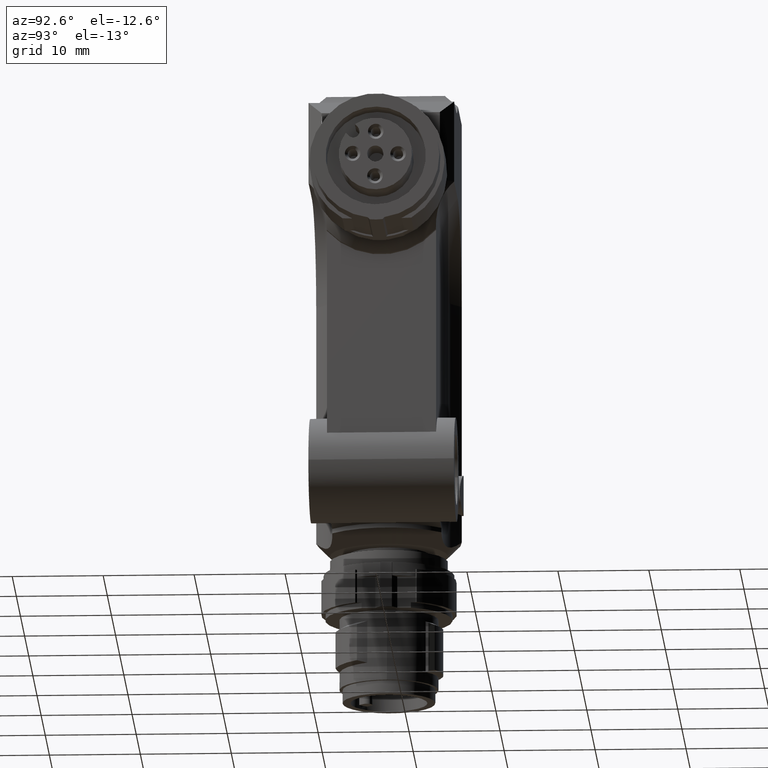
[diagram: clean part render]
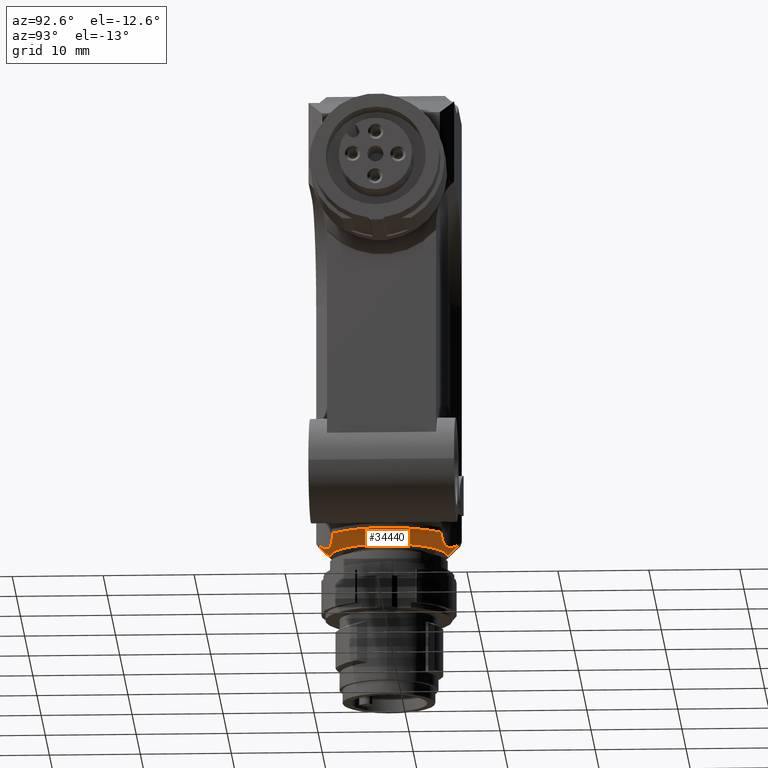
[diagram: same view with one face highlighted and labeled with its STEP entity id]
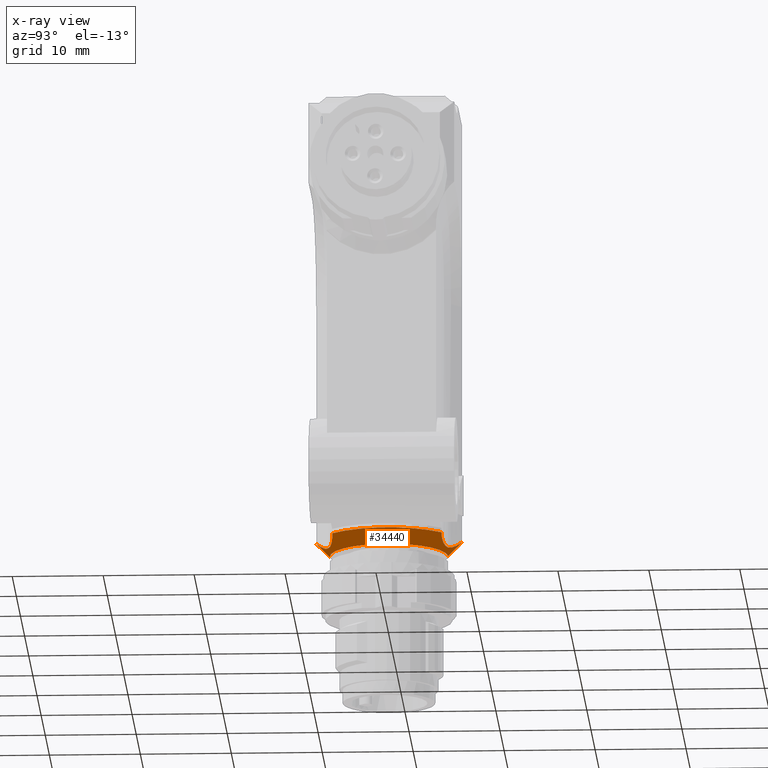
[diagram: x-ray of the same camera — body ghosted, the highlighted face saturated]
A machine part, auxiliary view. The second image highlights one B-rep face of the part: STEP entity #34440.
The next image is the same camera in x-ray: the body ghosted, the highlighted face saturated — about 0% of this face is hidden behind the body in this view.
In plain terms, the highlighted conical surface has half-angle 45 deg.
Its self-contained STEP definition (entity closure, byte-faithful):
#7100=CARTESIAN_POINT('',(8.,7.105427357601E-15,1.5));
#7110=VERTEX_POINT('',#7100);
#7190=CARTESIAN_POINT('',(-8.,8.08514479691888E-15,1.5));
#7200=VERTEX_POINT('',#7190);
#11740=CARTESIAN_POINT('',(-14.,5.29150262212919,0.));
#11750=DIRECTION('',(0.,0.,-1.));
#11760=DIRECTION('',(-1.,0.,0.));
#11770=AXIS2_PLACEMENT_3D('',#11740,#11750,#11760);
#11780=CYLINDRICAL_SURFACE('',#11770,8.);
#13770=CARTESIAN_POINT('',(7.61693287089118E-16,7.105427357601E-15,1.5))
;
#13780=DIRECTION('',(2.52970265222012E-16,0.,1.));
#13790=DIRECTION('',(1.,0.,-2.52970265222012E-16));
#13800=AXIS2_PLACEMENT_3D('',#13770,#13780,#13790);
#13810=CONICAL_SURFACE('',#13800,8.,0.785398163397448);
#13820=CARTESIAN_POINT('',(-8.,5.72739021824194E-15,1.5));
#13830=CARTESIAN_POINT('',(-7.96410206669721,0.0407044303287358,
1.46410206669721));
#13840=CARTESIAN_POINT('',(-7.92839924175299,0.0820225226208609,
1.42870963334482));
#13850=CARTESIAN_POINT('',(-7.89290958233148,0.12396484960915,
1.39388300893792));
#13860=CARTESIAN_POINT('',(-7.8574199214178,0.165907178360932,
1.35905638306671));
#13870=CARTESIAN_POINT('',(-7.82214335488641,0.208473797361093,
1.32479548294923));
#13880=CARTESIAN_POINT('',(-7.78709730604285,0.251677216877538,
1.29116331976651));
#13890=CARTESIAN_POINT('',(-7.75205126328362,0.294880628893448,
1.25753116242265));
#13900=CARTESIAN_POINT('',(-7.71723564973883,0.338720921531129,
1.22452764439301));
#13910=CARTESIAN_POINT('',(-7.6826676061991,0.383212550603892,
1.19221901705102));
#13920=CARTESIAN_POINT('',(-7.64809957885258,0.427704158834798,
1.15991040484383));
#13930=CARTESIAN_POINT('',(-7.61377901458603,0.472847213315825,
1.12829657298626));
#13940=CARTESIAN_POINT('',(-7.57972321579006,0.518657976204203,
1.09744760589153));
#13950=CARTESIAN_POINT('',(-7.54566744591511,0.564468700188939,
1.06659866499452));
#13960=CARTESIAN_POINT('',(-7.5118763162811,0.61094727666974,
1.03651446984425));
#13970=CARTESIAN_POINT('',(-7.47836782959569,0.65811144136523,
1.00726954783389));
#13980=CARTESIAN_POINT('',(-7.44485731579755,0.705278459280541,
0.9780228566373));
#13990=CARTESIAN_POINT('',(-7.41164536772475,0.753107034792666,
0.949628422345238));
#14000=CARTESIAN_POINT('',(-7.3786750100924,0.801730314090409,
0.922103232983273));
#14010=CARTESIAN_POINT('',(-7.34571005091874,0.850345631971193,
0.894582550505923));
#14020=CARTESIAN_POINT('',(-7.31301622512814,0.89971412583298,
0.867956975316604));
#14030=CARTESIAN_POINT('',(-7.28064316357945,0.949815887132247,
0.842337168424302));
#14040=CARTESIAN_POINT('',(-7.24827010448691,0.999917644630298,
0.816717363475771));
#14050=CARTESIAN_POINT('',(-7.21621790608939,1.05075253923477,
0.792103485069121));
#14060=CARTESIAN_POINT('',(-7.18453482592318,1.10229810803037,
0.768603840069305));
#14070=CARTESIAN_POINT('',(-7.1211559648346,1.20540990862833,
0.721595129796793));
#14080=CARTESIAN_POINT('',(-7.05930835544935,1.31127388298865,
0.679083714058225));
#14090=CARTESIAN_POINT('',(-6.99921085342267,1.41994591646509,
0.641792420416362));
#14100=CARTESIAN_POINT('',(-6.9691461035657,1.47431086330542,
0.623136846101685));
#14110=CARTESIAN_POINT('',(-6.939495860216,1.52942294213745,
0.605774380589383));
#14120=CARTESIAN_POINT('',(-6.91033369343176,1.58520640332651,
0.589823065191795));
#14130=CARTESIAN_POINT('',(-6.88117153535106,1.64098984786682,
0.573871754554922));
#14140=CARTESIAN_POINT('',(-6.8524981693361,1.69744343025899,
0.559332205759282));
#14150=CARTESIAN_POINT('',(-6.82438256141844,1.75448207156348,
0.546304328087861));
#14160=CARTESIAN_POINT('',(-6.79626689343016,1.8115208347343,
0.533276422581632));
#14170=CARTESIAN_POINT('',(-6.76870980882053,1.86914303288345,
0.521760725845155));
#14180=CARTESIAN_POINT('',(-6.74177290891049,1.92725835421782,
0.511834761260491));
#14190=CARTESIAN_POINT('',(-6.71484247471478,1.98535972602323,
0.501911179223619));
#14200=CARTESIAN_POINT('',(-6.68849583296876,2.04403208992537,
0.493563512535875));
#14210=CARTESIAN_POINT('',(-6.66279674439707,2.10317259122432,
0.486858765255289));
#14220=CARTESIAN_POINT('',(-6.63709596315496,2.16231698781227,
0.480153576366536));
#14230=CARTESIAN_POINT('',(-6.61205960585843,2.2218890719811,
0.475094558073922));
#14240=CARTESIAN_POINT('',(-6.58770603806595,2.28186838822701,
0.471713862828867));
#14250=CARTESIAN_POINT('',(-6.56335139197452,2.34185036016732,
0.468333017897322));
#14260=CARTESIAN_POINT('',(-6.53970243942642,2.40218410801377,
0.46663443254683));
#14270=CARTESIAN_POINT('',(-6.51678425174998,2.46281351493788,
0.46662955762807));
#14280=CARTESIAN_POINT('',(-6.49386388033894,2.52344869886911,
0.46662468224481));
#14290=CARTESIAN_POINT('',(-6.4716898448202,2.58433874005042,
0.468313817250641));
#14300=CARTESIAN_POINT('',(-6.45027951276266,2.64542617489855,
0.471684548199522));
#14310=CARTESIAN_POINT('',(-6.42886724174378,2.70651914194366,
0.475055584408357));
#14320=CARTESIAN_POINT('',(-6.40823611475259,2.7677596366264,
0.48010535598836));
#14330=CARTESIAN_POINT('',(-6.38838951291377,2.8291083009696,
0.486800007680294));
#14340=CARTESIAN_POINT('',(-6.36854313288212,2.89045627967534,
0.493494584552278));
#14350=CARTESIAN_POINT('',(-6.3494889494157,2.95189119291827,
0.501833248995333));
#14360=CARTESIAN_POINT('',(-6.33125209107613,3.01327842127105,
0.511747277594473));
#14370=CARTESIAN_POINT('',(-6.31301261372562,3.07467446549659,
0.521662729955804));
#14380=CARTESIAN_POINT('',(-6.2955682899759,3.13609766858084,
0.53316567557126));
#14390=CARTESIAN_POINT('',(-6.27893374412793,3.1974310205707,
0.546174429742339));
#14400=CARTESIAN_POINT('',(-6.24564902065462,3.32015536058764,
0.572204162641207));
#14410=CARTESIAN_POINT('',(-6.21567418007353,3.44225765683492,
0.604202798516999));
#14420=CARTESIAN_POINT('',(-6.18883944198332,3.56356433130844,
0.641479145248703));
#14430=CARTESIAN_POINT('',(-6.17541827429885,3.6242348403286,
0.660122595334525));
#14440=CARTESIAN_POINT('',(-6.16277843479283,3.68472628117394,
0.680092130688335));
#14450=CARTESIAN_POINT('',(-6.15090558738149,3.74498495271804,
0.701288207047774));
#14460=CARTESIAN_POINT('',(-6.13903275017531,3.80524357246757,
0.722484265188396));
#14470=CARTESIAN_POINT('',(-6.12792697853662,3.86526900765355,
0.744906613799509));
#14480=CARTESIAN_POINT('',(-6.11757068222246,3.92500781780645,
0.768449451005999));
#14490=CARTESIAN_POINT('',(-6.10721438787207,3.98474661663162,
0.791992283748277));
#14500=CARTESIAN_POINT('',(-6.09760760529449,4.04419850275096,
0.81665538518572));
#14510=CARTESIAN_POINT('',(-6.08872949336202,4.10331115153196,
0.842328598586623));
#14520=CARTESIAN_POINT('',(-6.07985137922011,4.16242381502395,
0.868001818376653));
#14530=CARTESIAN_POINT('',(-6.07170194880319,4.22119705638548,
0.894684971160126));
#14540=CARTESIAN_POINT('',(-6.06425727291068,4.27958001172416,
0.922265243764799));
#14550=CARTESIAN_POINT('',(-6.0568125931952,4.33796299704353,
0.949845530532436));
#14560=CARTESIAN_POINT('',(-6.0500726682241,4.39595558733358,
0.978322800150361));
#14570=CARTESIAN_POINT('',(-6.04401070510655,4.45350838614571,
1.00758298981162));
#14580=CARTESIAN_POINT('',(-6.0379505482363,4.51104403629074,
1.03683446098721));
#14590=CARTESIAN_POINT('',(-6.03256101860198,4.56819725430387,
1.06689599000467));
#14600=CARTESIAN_POINT('',(-6.02780845434912,4.62504785288182,
1.09773271468333));
#14610=CARTESIAN_POINT('',(-6.0230564031192,4.68189231463345,
1.12856611064377));
#14620=CARTESIAN_POINT('',(-6.01894399012063,4.73840740074541,
1.16016086913247));
#14630=CARTESIAN_POINT('',(-6.01544719175321,4.7945957371716,
1.19244780285675));
#14640=CARTESIAN_POINT('',(-6.01195039115163,4.85078410949739,
1.22473475720965));
#14650=CARTESIAN_POINT('',(-6.00906921148045,4.90664589788557,
1.25771400540506));
#14660=CARTESIAN_POINT('',(-6.00678110214714,4.96218263942553,
1.29132053994239));
#14670=CARTESIAN_POINT('',(-6.00449299210999,5.01771939804926,
1.32492708481748));
#14680=CARTESIAN_POINT('',(-6.00279796515409,5.07293123948109,
1.35916102175182));
#14690=CARTESIAN_POINT('',(-6.00167471304066,5.12781815742127,
1.39396088264509));
#14700=CARTESIAN_POINT('',(-6.00055146086099,5.18270507859823,
1.42876074559057));
#14710=CARTESIAN_POINT('',(-6.,5.23726717448766,1.46412662332406));
#14720=CARTESIAN_POINT('',(-6.,5.29150262212919,1.5));
#14730=B_SPLINE_CURVE_WITH_KNOTS('',3,(#13820,#13830,#13840,#13850,
#13860,#13870,#13880,#13890,#13900,#13910,#13920,#13930,#13940,#13950,
#13960,#13970,#13980,#13990,#14000,#14010,#14020,#14030,#14040,#14050,
#14060,#14070,#14080,#14090,#14100,#14110,#14120,#14130,#14140,#14150,
#14160,#14170,#14180,#14190,#14200,#14210,#14220,#14230,#14240,#14250,
#14260,#14270,#14280,#14290,#14300,#14310,#14320,#14330,#14340,#14350,
#14360,#14370,#14380,#14390,#14400,#14410,#14420,#14430,#14440,#14450,
#14460,#14470,#14480,#14490,#14500,#14510,#14520,#14530,#14540,#14550,
#14560,#14570,#14580,#14590,#14600,#14610,#14620,#14630,#14640,#14650,
#14660,#14670,#14680,#14690,#14700,#14710,#14720),.UNSPECIFIED.,.F.,.F.,
(4,3,3,3,3,3,3,3,3,3,3,3,3,3,3,3,3,3,3,3,3,3,3,3,3,3,3,3,3,3,4),(0.,
0.195188606983974,0.390279432757332,0.58521482896295,0.779965254354914,
0.974530901724284,1.16901063706763,1.36370741116983,1.55846248008233,
1.94760034942322,2.1423273275449,2.33711989622456,2.53173046494902,
2.72619530425316,2.92064411735206,3.11508510544907,3.30952333629801,
3.50396649838287,3.69842833389841,3.89296298348065,4.28204020904119,
4.47681276609432,4.67184131875322,4.86700114885682,5.06210146850888,
5.25689410853825,5.45136465061439,5.64597534096816,5.840754721473,
6.03568712259809,6.23073027581124),.UNSPECIFIED.);
#14740=SURFACE_CURVE('',#14730,(#13810,#11780),.CURVE_3D.);
#14750=CARTESIAN_POINT('',(-6.,5.29150262212919,1.5));
#14760=VERTEX_POINT('',#14750);
#14770=EDGE_CURVE('',#7200,#14760,#14740,.T.);
#24260=CARTESIAN_POINT('',(7.61693287089117E-16,7.105427357601E-15,1.5))
;
#24270=DIRECTION('',(2.52970265222012E-16,3.09799225583593E-32,1.));
#24280=DIRECTION('',(1.,1.52742810956651E-63,-2.52970265222012E-16));
#24290=AXIS2_PLACEMENT_3D('',#24260,#24270,#24280);
#24300=CIRCLE('',#24290,8.);
#24310=CARTESIAN_POINT('',(6.,5.29150262212919,1.5));
#24320=VERTEX_POINT('',#24310);
#24330=EDGE_CURVE('',#24320,#14760,#24300,.T.);
#25220=CARTESIAN_POINT('',(14.,5.29150262212919,0.));
#25230=DIRECTION('',(0.,0.,-1.));
#25240=DIRECTION('',(1.,0.,0.));
#25250=AXIS2_PLACEMENT_3D('',#25220,#25230,#25240);
#25260=CYLINDRICAL_SURFACE('',#25250,8.);
#25310=CARTESIAN_POINT('',(8.,7.36775560624499E-15,1.5));
#25320=CARTESIAN_POINT('',(7.96410206669721,0.0407044303287402,
1.4641020666972));
#25330=CARTESIAN_POINT('',(7.92839924175299,0.0820225226208562,
1.42870963334482));
#25340=CARTESIAN_POINT('',(7.89290958233149,0.123964849609148,
1.39388300893791));
#25350=CARTESIAN_POINT('',(7.85741992141855,0.165907178360047,
1.35905638306744));
#25360=CARTESIAN_POINT('',(7.82214335488715,0.208473797360179,
1.32479548294994));
#25370=CARTESIAN_POINT('',(7.78709730604285,0.251677216877535,
1.2911633197665));
#25380=CARTESIAN_POINT('',(7.75205126328362,0.294880628893451,
1.25753116242264));
#25390=CARTESIAN_POINT('',(7.71723564973883,0.338720921531128,
1.224527644393));
#25400=CARTESIAN_POINT('',(7.6826676061991,0.383212550603892,
1.19221901705102));
#25410=CARTESIAN_POINT('',(7.64809957885258,0.4277041588348,
1.15991040484383));
#25420=CARTESIAN_POINT('',(7.61377901458604,0.472847213315818,
1.12829657298626));
#25430=CARTESIAN_POINT('',(7.57972321579006,0.518657976204202,
1.09744760589153));
#25440=CARTESIAN_POINT('',(7.54566744591512,0.564468700188936,
1.06659866499451));
#25450=CARTESIAN_POINT('',(7.5118763162811,0.610947276669745,
1.03651446984424));
#25460=CARTESIAN_POINT('',(7.47836782959569,0.658111441365229,
1.00726954783389));
#25470=CARTESIAN_POINT('',(7.44485731579756,0.705278459280539,
0.978022856637298));
#25480=CARTESIAN_POINT('',(7.41164536772475,0.753107034792663,
0.949628422345234));
#25490=CARTESIAN_POINT('',(7.3786750100924,0.801730314090405,
0.92210323298327));
#25500=CARTESIAN_POINT('',(7.34571005091874,0.850345631971183,
0.894582550505923));
#25510=CARTESIAN_POINT('',(7.31301622512814,0.899714125832975,
0.867956975316601));
#25520=CARTESIAN_POINT('',(7.28064316357945,0.949815887132244,
0.842337168424297));
#25530=CARTESIAN_POINT('',(7.24827010448691,0.999917644630293,
0.816717363475768));
#25540=CARTESIAN_POINT('',(7.21621790608939,1.05075253923478,
0.792103485069114));
#25550=CARTESIAN_POINT('',(7.18453482592318,1.10229810803037,
0.768603840069301));
#25560=CARTESIAN_POINT('',(7.1211559648346,1.20540990862833,
0.72159512979679));
#25570=CARTESIAN_POINT('',(7.05930835544935,1.31127388298865,
0.679083714058221));
#25580=CARTESIAN_POINT('',(6.99921085342267,1.41994591646509,
0.641792420416356));
#25590=CARTESIAN_POINT('',(6.9691461035657,1.47431086330543,
0.623136846101677));
#25600=CARTESIAN_POINT('',(6.939495860216,1.52942294213745,
0.605774380589379));
#25610=CARTESIAN_POINT('',(6.91033369343176,1.58520640332651,
0.58982306519179));
#25620=CARTESIAN_POINT('',(6.88117153535106,1.64098984786682,
0.573871754554918));
#25630=CARTESIAN_POINT('',(6.8524981693361,1.69744343025899,
0.559332205759277));
#25640=CARTESIAN_POINT('',(6.82438256141844,1.75448207156348,
0.546304328087857));
#25650=CARTESIAN_POINT('',(6.79626689343016,1.8115208347343,
0.533276422581627));
#25660=CARTESIAN_POINT('',(6.76870980882053,1.86914303288345,
0.521760725845152));
#25670=CARTESIAN_POINT('',(6.74177290891049,1.92725835421782,
0.511834761260487));
#25680=CARTESIAN_POINT('',(6.71484247471478,1.98535972602323,
0.501911179223614));
#25690=CARTESIAN_POINT('',(6.68849583296876,2.04403208992537,
0.493563512535871));
#25700=CARTESIAN_POINT('',(6.66279674439707,2.10317259122431,
0.486858765255285));
#25710=CARTESIAN_POINT('',(6.63709596315496,2.16231698781227,
0.480153576366532));
#25720=CARTESIAN_POINT('',(6.61205960585843,2.22188907198109,
0.475094558073918));
#25730=CARTESIAN_POINT('',(6.58770603806595,2.28186838822701,
0.471713862828863));
#25740=CARTESIAN_POINT('',(6.56335139197452,2.34185036016731,
0.468333017897318));
#25750=CARTESIAN_POINT('',(6.53970243942641,2.40218410801377,
0.466634432546825));
#25760=CARTESIAN_POINT('',(6.51678425174998,2.46281351493787,
0.466629557628065));
#25770=CARTESIAN_POINT('',(6.49386388033894,2.5234486988691,
0.466624682244805));
#25780=CARTESIAN_POINT('',(6.4716898448202,2.58433874005042,
0.468313817250638));
#25790=CARTESIAN_POINT('',(6.45027951276266,2.64542617489854,
0.471684548199518));
#25800=CARTESIAN_POINT('',(6.42886724174378,2.70651914194366,
0.475055584408353));
#25810=CARTESIAN_POINT('',(6.40823611475259,2.76775963662641,
0.480105355988356));
#25820=CARTESIAN_POINT('',(6.38838951291377,2.8291083009696,
0.486800007680289));
#25830=CARTESIAN_POINT('',(6.36854313288212,2.89045627967534,
0.493494584552273));
#25840=CARTESIAN_POINT('',(6.3494889494157,2.95189119291826,
0.501833248995327));
#25850=CARTESIAN_POINT('',(6.33125209107613,3.01327842127104,
0.511747277594468));
#25860=CARTESIAN_POINT('',(6.31301261372562,3.07467446549659,
0.521662729955799));
#25870=CARTESIAN_POINT('',(6.2955682899759,3.13609766858083,
0.533165675571256));
#25880=CARTESIAN_POINT('',(6.27893374412793,3.19743102057069,
0.546174429742334));
#25890=CARTESIAN_POINT('',(6.24564902065462,3.32015536058764,
0.572204162641202));
#25900=CARTESIAN_POINT('',(6.21567418007353,3.44225765683491,
0.604202798516991));
#25910=CARTESIAN_POINT('',(6.18883944198332,3.56356433130844,
0.641479145248698));
#25920=CARTESIAN_POINT('',(6.17541827429885,3.6242348403286,
0.660122595334521));
#25930=CARTESIAN_POINT('',(6.16277843479283,3.68472628117394,
0.68009213068833));
#25940=CARTESIAN_POINT('',(6.15090558738149,3.74498495271804,
0.701288207047769));
#25950=CARTESIAN_POINT('',(6.13903275017531,3.80524357246757,
0.722484265188391));
#25960=CARTESIAN_POINT('',(6.12792697853662,3.86526900765355,
0.744906613799507));
#25970=CARTESIAN_POINT('',(6.11757068222246,3.92500781780644,
0.768449451005995));
#25980=CARTESIAN_POINT('',(6.10721438787207,3.98474661663162,
0.791992283748274));
#25990=CARTESIAN_POINT('',(6.09760760529449,4.04419850275096,
0.816655385185715));
#26000=CARTESIAN_POINT('',(6.08872949336202,4.10331115153196,
0.842328598586618));
#26010=CARTESIAN_POINT('',(6.07985137922011,4.16242381502395,
0.86800181837665));
#26020=CARTESIAN_POINT('',(6.07170194880319,4.22119705638548,
0.894684971160124));
#26030=CARTESIAN_POINT('',(6.06425727291068,4.27958001172416,
0.922265243764795));
#26040=CARTESIAN_POINT('',(6.0568125931952,4.33796299704353,
0.949845530532434));
#26050=CARTESIAN_POINT('',(6.0500726682241,4.39595558733357,
0.978322800150353));
#26060=CARTESIAN_POINT('',(6.04401070510655,4.45350838614571,
1.00758298981162));
#26070=CARTESIAN_POINT('',(6.0379505482363,4.51104403629074,
1.0368344609872));
#26080=CARTESIAN_POINT('',(6.03256101860198,4.56819725430386,
1.06689599000466));
#26090=CARTESIAN_POINT('',(6.02780845434912,4.62504785288182,
1.09773271468333));
#26100=CARTESIAN_POINT('',(6.0230564031192,4.68189231463345,
1.12856611064376));
#26110=CARTESIAN_POINT('',(6.01894399012063,4.73840740074542,
1.16016086913246));
#26120=CARTESIAN_POINT('',(6.01544719175321,4.7945957371716,
1.19244780285674));
#26130=CARTESIAN_POINT('',(6.01195039115163,4.85078410949739,
1.22473475720964));
#26140=CARTESIAN_POINT('',(6.00906921148045,4.90664589788555,
1.25771400540505));
#26150=CARTESIAN_POINT('',(6.00678110214715,4.96218263942553,
1.29132053994238));
#26160=CARTESIAN_POINT('',(6.00449299210999,5.01771939804927,
1.32492708481748));
#26170=CARTESIAN_POINT('',(6.00279796515409,5.07293123948109,
1.35916102175182));
#26180=CARTESIAN_POINT('',(6.00167471304066,5.12781815742127,
1.39396088264508));
#26190=CARTESIAN_POINT('',(6.00055146086099,5.18270507859822,
1.42876074559056));
#26200=CARTESIAN_POINT('',(6.,5.23726717448766,1.46412662332406));
#26210=CARTESIAN_POINT('',(6.,5.29150262212919,1.5));
#26220=B_SPLINE_CURVE_WITH_KNOTS('',3,(#25310,#25320,#25330,#25340,
#25350,#25360,#25370,#25380,#25390,#25400,#25410,#25420,#25430,#25440,
#25450,#25460,#25470,#25480,#25490,#25500,#25510,#25520,#25530,#25540,
#25550,#25560,#25570,#25580,#25590,#25600,#25610,#25620,#25630,#25640,
#25650,#25660,#25670,#25680,#25690,#25700,#25710,#25720,#25730,#25740,
#25750,#25760,#25770,#25780,#25790,#25800,#25810,#25820,#25830,#25840,
#25850,#25860,#25870,#25880,#25890,#25900,#25910,#25920,#25930,#25940,
#25950,#25960,#25970,#25980,#25990,#26000,#26010,#26020,#26030,#26040,
#26050,#26060,#26070,#26080,#26090,#26100,#26110,#26120,#26130,#26140,
#26150,#26160,#26170,#26180,#26190,#26200,#26210),.UNSPECIFIED.,.F.,.F.,
(4,3,3,3,3,3,3,3,3,3,3,3,3,3,3,3,3,3,3,3,3,3,3,3,3,3,3,3,3,3,4),(0.,
0.195188606983912,0.390279432757215,0.585214828962806,0.779965254354791,
0.974530901724159,1.16901063706746,1.36370741116966,1.55846248008218,
1.94760034942307,2.14232732754476,2.33711989622442,2.53173046494889,
2.72619530425303,2.92064411735194,3.11508510544894,3.3095233362979,
3.50396649838276,3.69842833389832,3.89296298348056,4.2820402090411,
4.47681276609423,4.67184131875314,4.86700114885674,5.06210146850882,
5.25689410853817,5.45136465061425,5.64597534096793,5.84075472147277,
6.03568712259786,6.23073027581095),.UNSPECIFIED.);
#26230=SURFACE_CURVE('',#26220,(#13810,#25260),.CURVE_3D.);
#26240=EDGE_CURVE('',#7110,#24320,#26230,.T.);
#33900=CARTESIAN_POINT('',(3.822378892561E-16,7.105427357601E-15,
-5.0068352689673E-32));
#33910=DIRECTION('',(2.52970265222012E-16,6.19598451167187E-32,1.));
#33920=DIRECTION('',(1.,0.,-2.52970265222012E-16));
#33930=AXIS2_PLACEMENT_3D('',#33900,#33910,#33920);
#33940=CIRCLE('',#33930,6.5);
#33950=CARTESIAN_POINT('',(6.50000000000001,7.105427357601E-15,0.));
#33960=VERTEX_POINT('',#33950);
#33970=CARTESIAN_POINT('',(-6.50000000000001,7.90144777704678E-15,
1.55431223447522E-15));
#33980=VERTEX_POINT('',#33970);
#33990=EDGE_CURVE('',#33960,#33980,#33940,.T.);
#34210=CARTESIAN_POINT('',(7.61693287089118E-16,7.105427357601E-15,1.5))
;
#34220=DIRECTION('',(2.52970265222012E-16,0.,1.));
#34230=DIRECTION('',(1.,0.,-2.52970265222012E-16));
#34240=AXIS2_PLACEMENT_3D('',#34210,#34220,#34230);
#34250=CONICAL_SURFACE('',#34240,8.,0.785398163397448);
#34260=ORIENTED_EDGE('',*,*,#24330,.F.);
#34270=ORIENTED_EDGE('',*,*,#14770,.T.);
#34280=CARTESIAN_POINT('',(-8.,8.08514479691888E-15,1.5));
#34290=DIRECTION('',(-0.707106781186547,8.65956056235493E-17,
0.707106781186548));
#34300=VECTOR('',#34290,11.3137084989848);
#34310=LINE('',#34280,#34300);
#34320=EDGE_CURVE('',#33980,#7200,#34310,.T.);
#34330=ORIENTED_EDGE('',*,*,#34320,.T.);
#34340=ORIENTED_EDGE('',*,*,#33990,.T.);
#34350=CARTESIAN_POINT('',(8.,7.105427357601E-15,1.5));
#34360=DIRECTION('',(0.707106781186547,0.,0.707106781186548));
#34370=VECTOR('',#34360,11.3137084989848);
#34380=LINE('',#34350,#34370);
#34390=EDGE_CURVE('',#33960,#7110,#34380,.T.);
#34400=ORIENTED_EDGE('',*,*,#34390,.F.);
#34410=ORIENTED_EDGE('',*,*,#26240,.F.);
#34420=EDGE_LOOP('',(#34410,#34400,#34340,#34330,#34270,#34260));
#34430=FACE_OUTER_BOUND('',#34420,.T.);
#34440=ADVANCED_FACE('',(#34430),#34250,.T.);